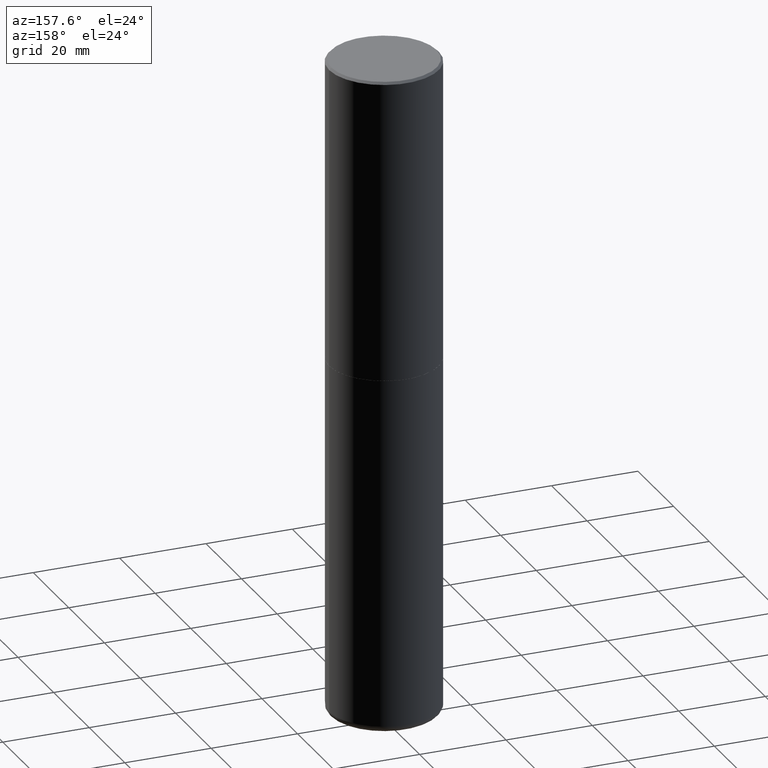
[diagram: clean part render]
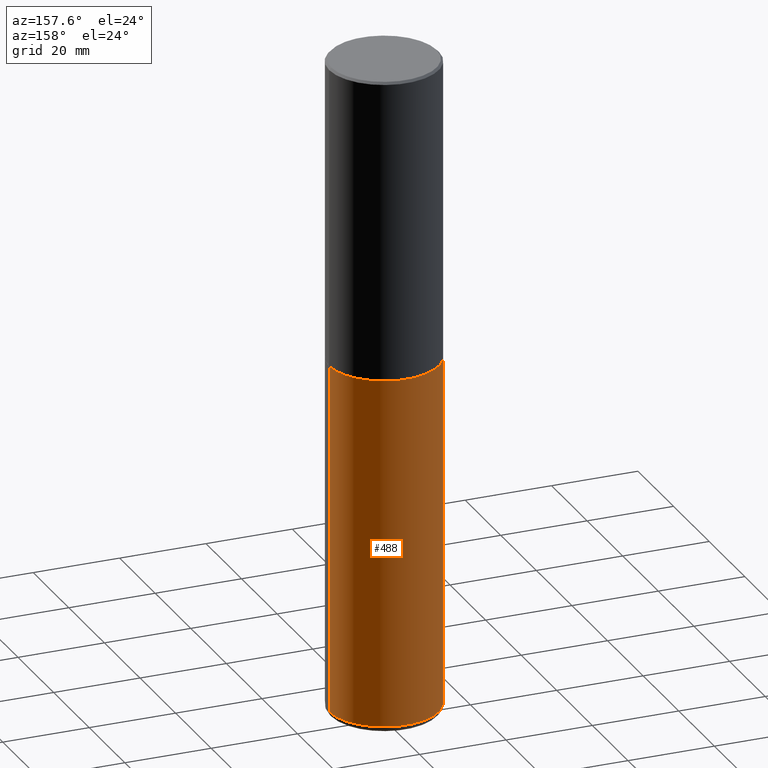
[diagram: same view with one face highlighted and labeled with its STEP entity id]
A machine part, auxiliary view. The second image highlights one B-rep face of the part: STEP entity #488.
In plain terms, the highlighted cylindrical surface (partial cylindrical patch) has radius 12.7 mm, axis along (-0, 0, 1).
Its self-contained STEP definition (entity closure, byte-faithful):
#7 = CARTESIAN_POINT ( 'NONE',  ( 0.000000000000000000, 0.000000000000000000, 0.000000000000000000 ) ) ;
#9 = VERTEX_POINT ( 'NONE', #279 ) ;
#18 = CIRCLE ( 'NONE', #73, 0.5000000000000000000 ) ;
#22 = EDGE_CURVE ( 'NONE', #72, #47, #160, .T. ) ;
#47 = VERTEX_POINT ( 'NONE', #171 ) ;
#72 = VERTEX_POINT ( 'NONE', #126 ) ;
#73 = AXIS2_PLACEMENT_3D ( 'NONE', #115, #430, #187 ) ;
#76 = CARTESIAN_POINT ( 'NONE',  ( 0.5000000000000000000, -3.491481338843133355E-15, 2.438088387897967896E-29 ) ) ;
#79 = DIRECTION ( 'NONE',  ( 1.000000000000000000, -6.982962677686270655E-15, 0.000000000000000000 ) ) ;
#93 = CIRCLE ( 'NONE', #153, 0.5000000000000000000 ) ;
#115 = CARTESIAN_POINT ( 'NONE',  ( 6.725039217009125641E-29, -9.601573681818653015E-15, -2.750000000000000444 ) ) ;
#116 = FACE_OUTER_BOUND ( 'NONE', #379, .T. ) ;
#124 = AXIS2_PLACEMENT_3D ( 'NONE', #7, #460, #422 ) ;
#126 = CARTESIAN_POINT ( 'NONE',  ( -0.5000000000000000000, -1.161777672682029399E-14, -5.940002284616149097 ) ) ;
#140 = VECTOR ( 'NONE', #196, 39.37007874015748143 ) ;
#153 = AXIS2_PLACEMENT_3D ( 'NONE', #305, #197, #79 ) ;
#155 = ORIENTED_EDGE ( 'NONE', *, *, #251, .F. ) ;
#160 = LINE ( 'NONE', #365, #301 ) ;
#171 = CARTESIAN_POINT ( 'NONE',  ( -0.5000000000000000000, -1.161777672682029399E-14, -2.750000000000000444 ) ) ;
#187 = DIRECTION ( 'NONE',  ( 1.000000000000000000, -6.982962677686266711E-15, 0.000000000000000000 ) ) ;
#196 = DIRECTION ( 'NONE',  ( -2.445468806185136877E-29, 3.491481338843145188E-15, 1.000000000000000000 ) ) ;
#197 = DIRECTION ( 'NONE',  ( -2.445468806185136597E-29, 3.491481338843145583E-15, 1.000000000000000000 ) ) ;
#226 = ORIENTED_EDGE ( 'NONE', *, *, #22, .T. ) ;
#251 = EDGE_CURVE ( 'NONE', #354, #47, #18, .T. ) ;
#279 = CARTESIAN_POINT ( 'NONE',  ( 0.5000000000000000000, -2.423088846826607176E-14, -5.940002284616149097 ) ) ;
#299 = CYLINDRICAL_SURFACE ( 'NONE', #124, 0.5000000000000000000 ) ;
#301 = VECTOR ( 'NONE', #393, 39.37007874015748143 ) ;
#305 = CARTESIAN_POINT ( 'NONE',  ( 1.452609029569723979E-28, -2.073940712942293841E-14, -5.940002284616149097 ) ) ;
#310 = CARTESIAN_POINT ( 'NONE',  ( 0.5000000000000000000, -1.309305502066178637E-14, -2.750000000000000444 ) ) ;
#340 = LINE ( 'NONE', #76, #140 ) ;
#348 = EDGE_CURVE ( 'NONE', #9, #354, #340, .T. ) ;
#354 = VERTEX_POINT ( 'NONE', #310 ) ;
#365 = CARTESIAN_POINT ( 'NONE',  ( -0.5000000000000000000, 3.552713678800500929E-15, -2.459467545127452891E-29 ) ) ;
#379 = EDGE_LOOP ( 'NONE', ( #453, #226, #155, #384 ) ) ;
#384 = ORIENTED_EDGE ( 'NONE', *, *, #348, .F. ) ;
#393 = DIRECTION ( 'NONE',  ( -2.445468806185136877E-29, 3.491481338843145188E-15, 1.000000000000000000 ) ) ;
#422 = DIRECTION ( 'NONE',  ( 1.000000000000000000, -6.982962677686266711E-15, 4.876176775795935793E-29 ) ) ;
#430 = DIRECTION ( 'NONE',  ( -2.445468806185136597E-29, 3.491481338843145583E-15, 1.000000000000000000 ) ) ;
#453 = ORIENTED_EDGE ( 'NONE', *, *, #454, .T. ) ;
#454 = EDGE_CURVE ( 'NONE', #9, #72, #93, .T. ) ;
#460 = DIRECTION ( 'NONE',  ( -2.445468806185136597E-29, 3.491481338843145583E-15, 1.000000000000000000 ) ) ;
#488 = ADVANCED_FACE ( 'NONE', ( #116 ), #299, .T. ) ;